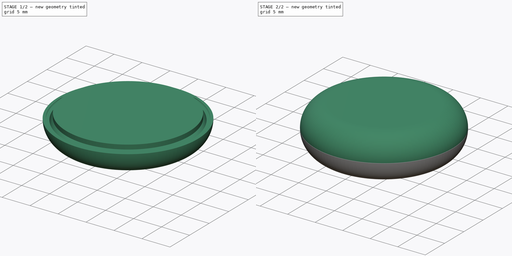
[diagram: build sequence overview — one tinted view per stage of 2, left to right]
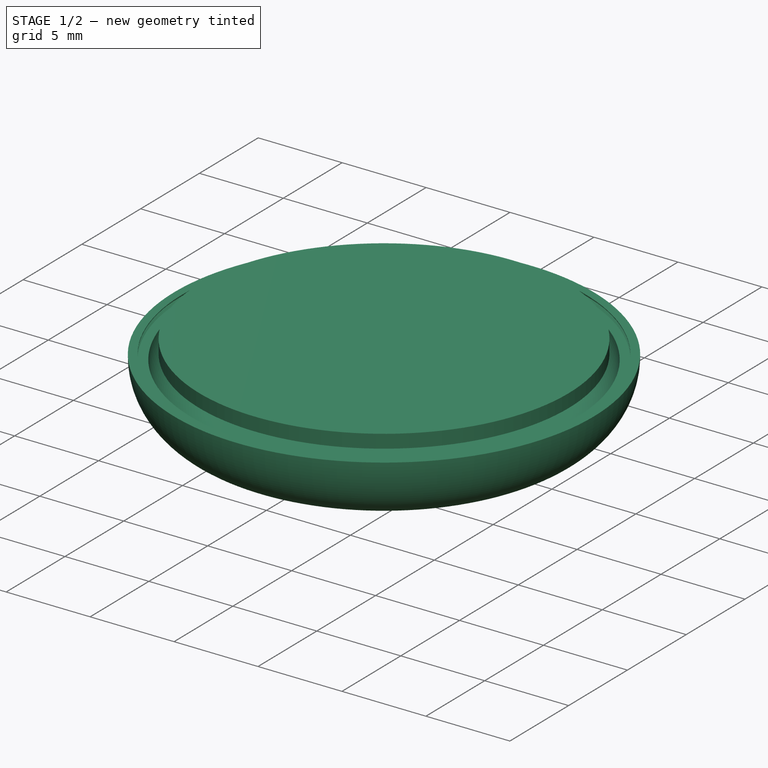
[diagram: stage 1 of 2 — iso view after this stage's code; geometry added in this stage tinted green]
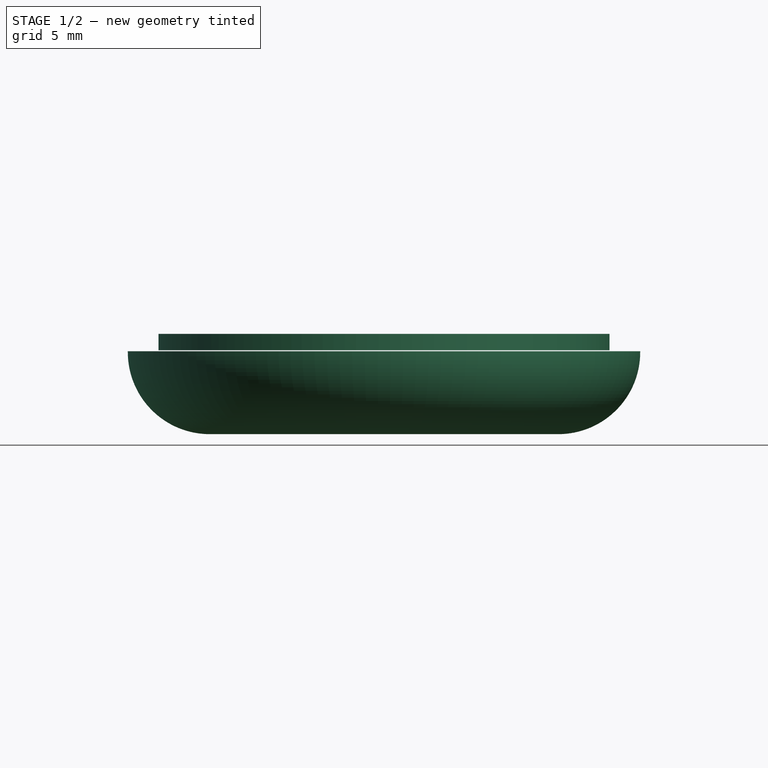
[diagram: stage 1 of 2 — front view after this stage's code; geometry added in this stage tinted green]
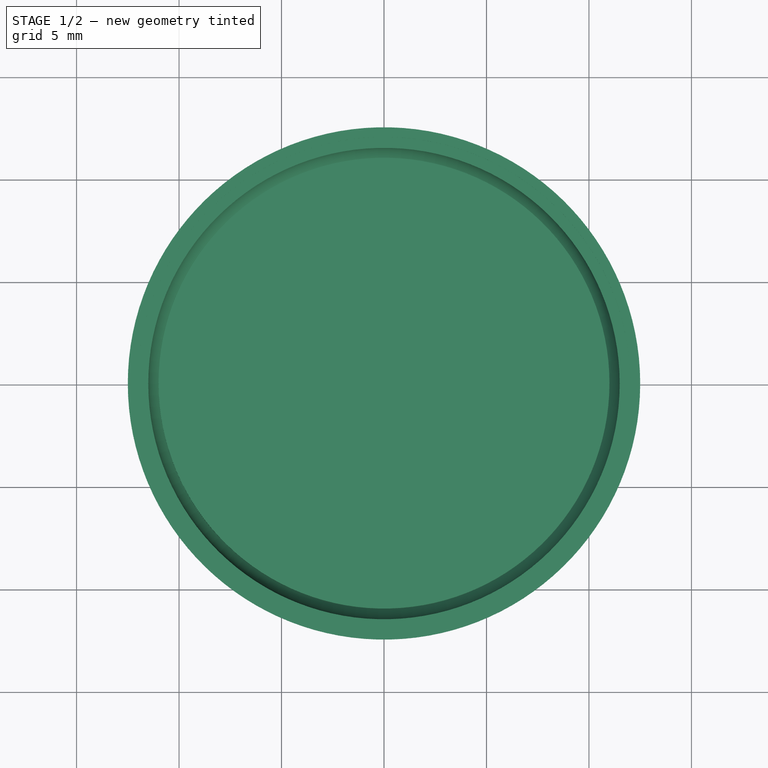
[diagram: stage 1 of 2 — top view after this stage's code; geometry added in this stage tinted green]
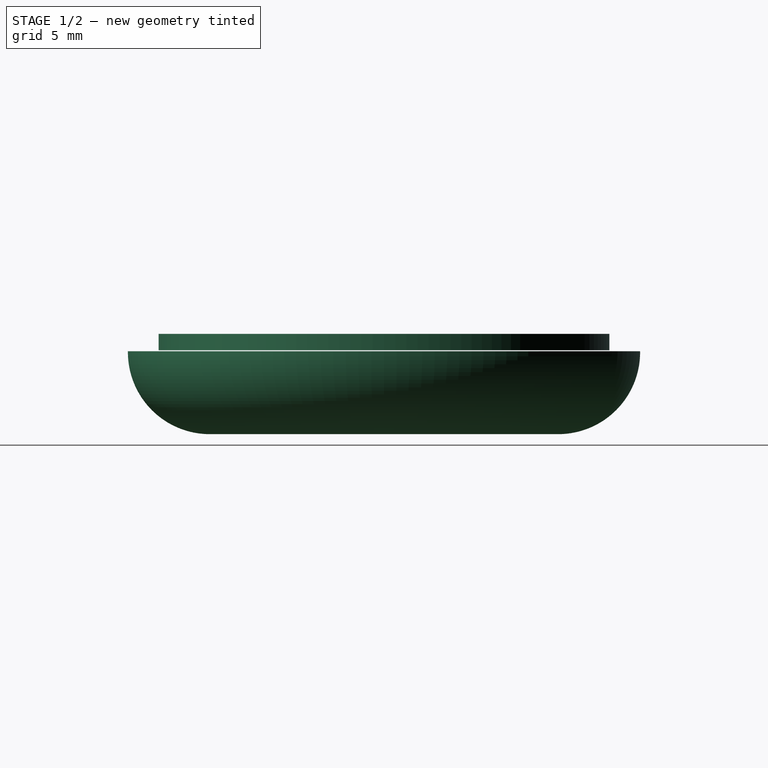
[diagram: stage 1 of 2 — right view after this stage's code; geometry added in this stage tinted green]
FCSTD DOCUMENT  (FreeCAD 0.21R33668 +7 (Git))
Label: Gymtimer2
License: All rights reserved
LicenseURL: http://en.wikipedia.org/wiki/All_rights_reserved
objects: Sketcher::SketchObject×7, PartDesign::Revolution×3, PartDesign::Body×3, Part::Feature×1, PartDesign::Pad×1
note: 19 computed .brp shape members not serialized (recipe doc carries the construction recipe); baked Part::Feature solids carry a one-line shape summary decoded from their .brp

FEATURE [PartDesign::Body] Body  label="Top"
  Group = -> [Sketch,Sketch001,Sketch003,Revolution,Revolution001]
  Origin = -> Origin
  Tip = -> Revolution001
FEATURE [Sketcher::SketchObject] Sketch004
  FullyConstrained = false
  MapMode = 5
  Support = -> [XY_Plane001]
  sketch-geometry (6):
    g0: Circle CenterX=0 CenterY=0 CenterZ=0 NormalX=0 NormalY=0 NormalZ=1 AngleXU=0 Radius=12.5
    g1: Circle CenterX=0 CenterY=0 CenterZ=0 NormalX=0 NormalY=0 NormalZ=1 AngleXU=0 Radius=10
    g2: LineSegment StartX=-7.84018 StartY=6.15 StartZ=0 EndX=-3.24018 EndY=6.15 EndZ=0
    g3: LineSegment StartX=-3.24018 StartY=6.15 StartZ=0 EndX=-3.24018 EndY=-6.15 EndZ=0
    g4: LineSegment StartX=-3.24018 StartY=-6.15 StartZ=0 EndX=-7.84018 EndY=-6.15 EndZ=0
    g5: LineSegment StartX=-7.84018 StartY=-6.15 StartZ=0 EndX=-7.84018 EndY=6.15 EndZ=0
  constraints (14):
    c: Coincident(g0,g-1)
    c: Diameter(g0) = 25
    c: Coincident(g1,g0)
    c: Diameter(g1) = 20
    c: Coincident(g2,g3)
    c: Coincident(g3,g4)
    c: Coincident(g4,g5)
    c: Coincident(g5,g2)
    c: Horizontal(g2)
    c: Horizontal(g4)
    c: Vertical(g5)
    c: DistanceX(g2,g2) = 4.6
    c: DistanceY(g3,g3) = 12.3
    c: Symmetric(g2,g3,g-1)
FEATURE [Sketcher::SketchObject] Sketch005
  FullyConstrained = false
  MapMode = 5
  Placement = pos=(0,0,0) rot=(1,0,0;1.5708rad)
  Support = -> [XZ_Plane001]
  sketch-geometry (35):
    g0: LineSegment StartX=0 StartY=4.01302 StartZ=0 EndX=8.52532 EndY=4.01302 EndZ=0
    g1: ArcOfCircle CenterX=8.51064 CenterY=0.023616 CenterZ=0 NormalX=0 NormalY=0 NormalZ=1 AngleXU=0 Radius=3.98943 StartAngle=6.27727 EndAngle=7.8503
    g2: LineSegment StartX=12.5 StartY=-9e-16 StartZ=0 EndX=11.975 EndY=0 EndZ=0
    g3: LineSegment StartX=11.975 StartY=0 StartZ=0 EndX=11.975 EndY=-0.142154 EndZ=0
    g4: LineSegment StartX=11.975 StartY=-0.142154 StartZ=0 EndX=12.0461 EndY=-0.213231 EndZ=0
    g5: LineSegment StartX=12.0461 StartY=-0.213231 StartZ=0 EndX=11.975 EndY=-0.284308 EndZ=0
    g6: LineSegment StartX=11.975 StartY=-0.284308 StartZ=0 EndX=11.5 EndY=-0.284308 EndZ=0
    g7: LineSegment StartX=11.5 StartY=-0.284308 StartZ=0 EndX=11.5 EndY=0.023616 EndZ=0
    g8: ArcOfCircle CenterX=8.51064 CenterY=0.023616 CenterZ=0 NormalX=0 NormalY=0 NormalZ=1 AngleXU=0 Radius=2.98936 StartAngle=0 EndAngle=1.57757
    g9: LineSegment StartX=8.49039 StartY=3.01291 StartZ=0 EndX=0 EndY=3.01291 EndZ=0
    g10: LineSegment StartX=0 StartY=3.01291 StartZ=0 EndX=0 EndY=4.01302 EndZ=0
    g11: LineSegment StartX=0 StartY=-3.98721 StartZ=0 EndX=8.51064 EndY=-3.98721 EndZ=0
    g12: ArcOfCircle CenterX=8.51064 CenterY=0.023616 CenterZ=0 NormalX=0 NormalY=0 NormalZ=1 AngleXU=0 Radius=4.01082 StartAngle=4.71239 EndAngle=6.17969
    g13: LineSegment StartX=12.5 StartY=-8e-16 StartZ=0 EndX=11.975 EndY=0 EndZ=0
    g14: ArcOfCircle CenterX=8.51064 CenterY=0.023616 CenterZ=0 NormalX=0 NormalY=0 NormalZ=1 AngleXU=0 Radius=3.01071 StartAngle=4.71239 EndAngle=6.16402
    g15: LineSegment StartX=8.51064 StartY=-2.98709 StartZ=0 EndX=0 EndY=-2.98709 EndZ=0
    g16: LineSegment StartX=0 StartY=-2.98709 StartZ=0 EndX=0 EndY=-3.98721 EndZ=0
    g17: LineSegment StartX=12.025 StartY=-0.334308 StartZ=0 EndX=11.5 EndY=-0.334308 EndZ=0
    g18: LineSegment StartX=12.025 StartY=-0.0921542 StartZ=0 EndX=12.1461 EndY=-0.213231 EndZ=0
    g19: LineSegment StartX=12.1461 StartY=-0.213231 StartZ=0 EndX=12.025 EndY=-0.334308 EndZ=0
    g20: LineSegment StartX=12.025 StartY=-0.05 StartZ=0 EndX=12.025 EndY=-0.0921542 EndZ=0
    g21: LineSegment StartX=12.5 StartY=-0.39076 StartZ=0 EndX=12.5 EndY=-0.05 EndZ=0
    g22: LineSegment StartX=0 StartY=4.01302 StartZ=0 EndX=0 EndY=3.01291 EndZ=0
    g23: LineSegment StartX=12.025 StartY=-0.05 StartZ=0 EndX=12.5 EndY=-0.05 EndZ=0
    g24: LineSegment StartX=0 StartY=4.01302 StartZ=0 EndX=8.52532 EndY=4.01302 EndZ=0
    g25: ArcOfCircle CenterX=8.52532 CenterY=0.0381534 CenterZ=0 NormalX=0 NormalY=0 NormalZ=1 AngleXU=0 Radius=3.97486 StartAngle=6.27359 EndAngle=7.85398
    g26: LineSegment StartX=12.5 StartY=-9e-16 StartZ=0 EndX=11.975 EndY=0 EndZ=0
    g27: LineSegment StartX=11.975 StartY=0 StartZ=0 EndX=11.975 EndY=-0.142154 EndZ=0
    g28: LineSegment StartX=11.975 StartY=-0.142154 StartZ=0 EndX=12.0461 EndY=-0.213231 EndZ=0
    g29: LineSegment StartX=12.0461 StartY=-0.213231 StartZ=0 EndX=11.975 EndY=-0.284308 EndZ=0
    g30: LineSegment StartX=11.975 StartY=-0.284308 StartZ=0 EndX=11.5 EndY=-0.284308 EndZ=0
    g31: LineSegment StartX=11.5 StartY=-0.284308 StartZ=0 EndX=11.5 EndY=0.023616 EndZ=0
    g32: ArcOfCircle CenterX=8.51064 CenterY=0.023616 CenterZ=0 NormalX=0 NormalY=0 NormalZ=1 AngleXU=0 Radius=2.98936 StartAngle=0 EndAngle=1.57757
    g33: LineSegment StartX=8.49039 StartY=3.01291 StartZ=0 EndX=0 EndY=3.01291 EndZ=0
    g34: LineSegment StartX=0 StartY=3.01291 StartZ=0 EndX=0 EndY=4.01302 EndZ=0
  constraints (84):
    c: PointOnObject(g0,g-2)
    c: Horizontal(g0)
    c: PointOnObject(g1,g-1)
    c: Coincident(g1,g2)
    c: PointOnObject(g2,g-1)
    c: Coincident(g2,g3)
    c: Vertical(g3)
    c: Coincident(g3,g4)
    c: Coincident(g4,g5)
    c: Coincident(g5,g6)
    c: Horizontal(g6)
    c: Coincident(g6,g7)
    c: Vertical(g7)
    c: Tangent(g7,g8) = -1.5708
    c: Horizontal(g9)
    c: Coincident(g9,g10)
    c: DistanceX(g-1,g1) = 12.5
    c: Coincident(g1,g8)
    c: Perpendicular(g5,g4)
    c: Equal(g5,g4)
    c: Symmetric(g5,g2,g3)
    c: Horizontal(g11)
    c: Horizontal(g15)
    c: Coincident(g15,g16)
    c: Vertical(g12,g1)
    c: Vertical(g14,g6)
    c: Horizontal(g17)
    c: Coincident(g17,g14)
    c: Coincident(g0,g10)
    c: Equal(g10,g16)
    c: Vertical(g16)
    c: Coincident(g16,g11)
    c: PointOnObject(g11,g-2)
    c: DistanceY(g15,g9) = 6
    c: Coincident(g14,g12)
    c: Coincident(g12,g1)
    c: Tangent(g14,g15) = 1.5708
    c: Tangent(g12,g11) = -1.5708
    c: Coincident(g18,g19)
    c: Perpendicular(g19,g18)
    c: Equal(g19,g18)
    c: Coincident(g20,g18)
    c: Vertical(g20)
    c: Coincident(g21,g12)
    c: Vertical(g21)
    c: Horizontal(g4,g18)
    c: Parallel(g4,g18)
    c: DistanceX(g7,g1) = 1
    c: Coincident(g17,g19)
    c: Coincident(g22,g0)
    c: Coincident(g22,g9)
    c: Vertical(g22)
    c: Coincident(g8,g9)
    c: Coincident(g1,g0)
    c: Coincident(g23,g20)
    c: Coincident(g23,g21)
    c: Horizontal(g23)
    c: DistanceY(g21,g1) = 0.05
    c: DistanceX(g2,g20) = 0.05
    c: DistanceY(g14,g6) = 0.05
    c: Equal(g23,g6)
    c: Coincident(g2,g13)
    c: Coincident(g0,g24)
    c: Coincident(g24,g0)
    c: Tangent(g24,g25) = 1.5708
    c: Coincident(g25,g1)
    c: Coincident(g25,g26)
    c: Coincident(g26,g2)
    c: Coincident(g26,g27)
    c: Coincident(g27,g3)
    c: Coincident(g27,g28)
    c: Coincident(g28,g4)
    c: Coincident(g28,g29)
    c: Coincident(g29,g5)
    c: Coincident(g29,g30)
    c: Coincident(g30,g6)
    c: Coincident(g30,g31)
    c: Coincident(g31,g7)
    c: Tangent(g31,g32) = -1.5708
    c: Coincident(g32,g8)
    c: Coincident(g32,g33)
    c: Coincident(g33,g9)
    c: Coincident(g33,g34)
    c: Coincident(g34,g24)
FEATURE [Sketcher::SketchObject] Sketch006
  FullyConstrained = false
  MapMode = 5
  Placement = pos=(0,0,0) rot=(1,0,0;1.5708rad)
  Support = -> [XZ_Plane001]
  sketch-geometry (35):
    g0: LineSegment StartX=0 StartY=3.88974 StartZ=0 EndX=8.79796 EndY=3.88974 EndZ=0
    g1: ArcOfCircle CenterX=8.50481 CenterY=-0.0958356 CenterZ=0 NormalX=0 NormalY=0 NormalZ=1 AngleXU=0 Radius=3.99634 StartAngle=0.0239831 EndAngle=1.49738
    g2: LineSegment StartX=12.5 StartY=0 StartZ=0 EndX=11.975 EndY=0 EndZ=0
    g3: LineSegment StartX=11.975 StartY=0 StartZ=0 EndX=11.975 EndY=-0.143017 EndZ=0
    g4: LineSegment StartX=11.975 StartY=-0.143017 StartZ=0 EndX=12.0465 EndY=-0.214525 EndZ=0
    g5: LineSegment StartX=12.0465 StartY=-0.214525 StartZ=0 EndX=11.975 EndY=-0.286033 EndZ=0
    g6: LineSegment StartX=11.975 StartY=-0.286033 StartZ=0 EndX=11.5 EndY=-0.286033 EndZ=0
    g7: LineSegment StartX=11.5 StartY=-0.286033 StartZ=0 EndX=11.5 EndY=-0.0958356 EndZ=0
    g8: ArcOfCircle CenterX=8.50481 CenterY=-0.0958356 CenterZ=0 NormalX=0 NormalY=0 NormalZ=1 AngleXU=0 Radius=2.99519 StartAngle=0 EndAngle=1.57173
    g9: LineSegment StartX=8.50201 StartY=2.89936 StartZ=0 EndX=0 EndY=2.89936 EndZ=0
    g10: LineSegment StartX=0 StartY=2.89936 StartZ=0 EndX=0 EndY=3.88974 EndZ=0
    g11: LineSegment StartX=0 StartY=-4.09103 StartZ=0 EndX=8.50481 EndY=-4.09103 EndZ=0
    g12: ArcOfCircle CenterX=8.50481 CenterY=-0.0958356 CenterZ=0 NormalX=0 NormalY=0 NormalZ=1 AngleXU=0 Radius=3.99519 StartAngle=4.71239 EndAngle=6.28319
    g13: LineSegment StartX=12.5 StartY=-8e-16 StartZ=0 EndX=11.975 EndY=0 EndZ=0
    g14: ArcOfCircle CenterX=8.50481 CenterY=-0.0958356 CenterZ=0 NormalX=0 NormalY=0 NormalZ=1 AngleXU=0 Radius=3.00481 StartAngle=4.71239 EndAngle=6.20316
    g15: LineSegment StartX=8.50481 StartY=-3.10064 StartZ=0 EndX=0 EndY=-3.10064 EndZ=0
    g16: LineSegment StartX=0 StartY=-3.10064 StartZ=0 EndX=0 EndY=-4.09103 EndZ=0
    g17: LineSegment StartX=12.025 StartY=-0.336033 StartZ=0 EndX=11.5 EndY=-0.336033 EndZ=0
    g18: LineSegment StartX=12.025 StartY=-0.0930166 StartZ=0 EndX=12.1465 EndY=-0.214525 EndZ=0
    g19: LineSegment StartX=12.1465 StartY=-0.214525 StartZ=0 EndX=12.025 EndY=-0.336033 EndZ=0
    g20: LineSegment StartX=12.025 StartY=-0.05 StartZ=0 EndX=12.025 EndY=-0.0930166 EndZ=0
    g21: LineSegment StartX=12.5 StartY=-0.095836 StartZ=0 EndX=12.5 EndY=-0.05 EndZ=0
    g22: LineSegment StartX=0 StartY=3.88974 StartZ=0 EndX=0 EndY=2.89936 EndZ=0
    g23: LineSegment StartX=12.025 StartY=-0.05 StartZ=0 EndX=12.5 EndY=-0.05 EndZ=0
    g24: LineSegment StartX=0 StartY=-4.09103 StartZ=0 EndX=0 EndY=-3.10064 EndZ=0
    g25: LineSegment StartX=0 StartY=-3.10064 StartZ=0 EndX=8.50481 EndY=-3.10064 EndZ=0
    g26: ArcOfCircle CenterX=8.50481 CenterY=-0.0958356 CenterZ=0 NormalX=0 NormalY=0 NormalZ=1 AngleXU=0 Radius=3.00481 StartAngle=4.71239 EndAngle=6.20316
    g27: LineSegment StartX=11.5 StartY=-0.336033 StartZ=0 EndX=12.025 EndY=-0.336033 EndZ=0
    g28: LineSegment StartX=12.025 StartY=-0.336033 StartZ=0 EndX=12.1465 EndY=-0.214525 EndZ=0
    g29: LineSegment StartX=12.1465 StartY=-0.214525 StartZ=0 EndX=12.025 EndY=-0.0930166 EndZ=0
    g30: LineSegment StartX=12.025 StartY=-0.0930166 StartZ=0 EndX=12.025 EndY=-0.05 EndZ=0
    g31: LineSegment StartX=12.025 StartY=-0.05 StartZ=0 EndX=12.5 EndY=-0.05 EndZ=0
    g32: LineSegment StartX=8.50782 StartY=-4.0941 StartZ=0 EndX=0 EndY=-4.09103 EndZ=0
    g33: LineSegment StartX=12.5 StartY=-0.05 StartZ=0 EndX=12.5 EndY=-0.095836 EndZ=0
    g34: ArcOfCircle CenterX=8.50173 CenterY=-0.095836 CenterZ=0 NormalX=0 NormalY=0 NormalZ=1 AngleXU=0 Radius=3.99827 StartAngle=4.71391 EndAngle=6.28319
  constraints (83):
    c: PointOnObject(g0,g-2)
    c: Horizontal(g0)
    c: PointOnObject(g1,g-1)
    c: Coincident(g1,g2)
    c: PointOnObject(g2,g-1)
    c: Coincident(g2,g3)
    c: Vertical(g3)
    c: Coincident(g3,g4)
    c: Coincident(g4,g5)
    c: Coincident(g5,g6)
    c: Horizontal(g6)
    c: Coincident(g6,g7)
    c: Vertical(g7)
    c: Tangent(g7,g8) = -1.5708
    c: Horizontal(g9)
    c: Coincident(g9,g10)
    c: DistanceX(g-1,g1) = 12.5
    c: Coincident(g1,g8)
    c: Perpendicular(g5,g4)
    c: Equal(g5,g4)
    c: Symmetric(g5,g2,g3)
    c: Horizontal(g11)
    c: Horizontal(g15)
    c: Coincident(g15,g16)
    c: Vertical(g12,g1)
    c: Vertical(g14,g6)
    c: Horizontal(g17)
    c: Coincident(g17,g14)
    c: Coincident(g0,g10)
    c: Equal(g10,g16)
    c: Vertical(g16)
    c: Coincident(g16,g11)
    c: PointOnObject(g11,g-2)
    c: DistanceY(g15,g9) = 6
    c: Coincident(g14,g12)
    c: Coincident(g12,g1)
    c: Tangent(g14,g15) = 1.5708
    c: Tangent(g12,g11) = -1.5708
    c: Coincident(g18,g19)
    c: Perpendicular(g19,g18)
    c: Equal(g19,g18)
    c: Coincident(g20,g18)
    c: Vertical(g20)
    c: Coincident(g21,g12)
    c: Vertical(g21)
    c: Horizontal(g4,g18)
    c: Parallel(g4,g18)
    c: DistanceX(g7,g1) = 1
    c: Coincident(g17,g19)
    c: Coincident(g22,g0)
    c: Coincident(g22,g9)
    c: Vertical(g22)
    c: Coincident(g8,g9)
    c: Coincident(g1,g0)
    c: Coincident(g23,g20)
    c: Coincident(g23,g21)
    c: Horizontal(g23)
    c: DistanceY(g21,g1) = 0.05
    c: DistanceX(g2,g20) = 0.05
    c: DistanceY(g14,g6) = 0.05
    c: Equal(g23,g6)
    c: Coincident(g2,g13)
    c: Coincident(g11,g24)
    c: Coincident(g24,g15)
    c: Coincident(g24,g25)
    c: Coincident(g25,g14)
    c: Tangent(g25,g26) = -1.5708
    c: Coincident(g26,g14)
    c: Coincident(g26,g27)
    c: Coincident(g27,g17)
    c: Coincident(g27,g28)
    c: Coincident(g28,g18)
    c: Coincident(g28,g29)
    c: Coincident(g29,g18)
    c: Coincident(g29,g30)
    c: Coincident(g30,g20)
    c: Coincident(g30,g31)
    c: Coincident(g31,g21)
    c: Coincident(g32,g24)
    c: Coincident(g31,g33)
    c: Coincident(g33,g12)
    c: Tangent(g33,g34) = 1.5708
    c: Coincident(g34,g32)
FEATURE [PartDesign::Revolution] Revolution003
  Angle = 360
  Axis = (-3e-16,3e-16,1)
  Base = (0,0,0)
  Placement = pos=(0,0,0) rot=(1,0,0;1.5708rad)
  Profile = -> Sketch006
  ReferenceAxis = -> Z_Axis001
  Reversed = true
FEATURE [PartDesign::Body] Body001  label="Bottom"
  Group = -> [Sketch004,Sketch005,Sketch006,Revolution003]
  Origin = -> Origin001
  Tip = -> Revolution003
FEATURE [Part::Feature] Part__Feature  label="battery"
  Placement = pos=(-3e-16,0,2.47) rot=(0,1,0;3.14159rad)
  shape: bbox 21.65 x 21.65 x 3.2 mm, 157 faces (baked)
FEATURE [Sketcher::SketchObject] Sketch007
  FullyConstrained = true
  MapMode = 5
  Support = -> [XY_Plane002]
  sketch-geometry (1):
    g0: Circle CenterX=0 CenterY=0 CenterZ=0 NormalX=0 NormalY=0 NormalZ=1 AngleXU=0 Radius=11
  constraints (2):
    c: Coincident(g0,g-1)
    c: Diameter(g0) = 22
FEATURE [PartDesign::Pad] Pad
  Direction = (0,0,1)
  Length = 0.8
  Length2 = 10
  Profile = -> Sketch007
  ReferenceAxis = -> Sketch007 [N_Axis]
  Type = 0
FEATURE [PartDesign::Body] Body002  label="PCB"
  Group = -> [Sketch007,Pad]
  Origin = -> Origin002
  Placement = pos=(0,0,-1.56) rot=(0,0,1;0rad)
  Tip = -> Pad
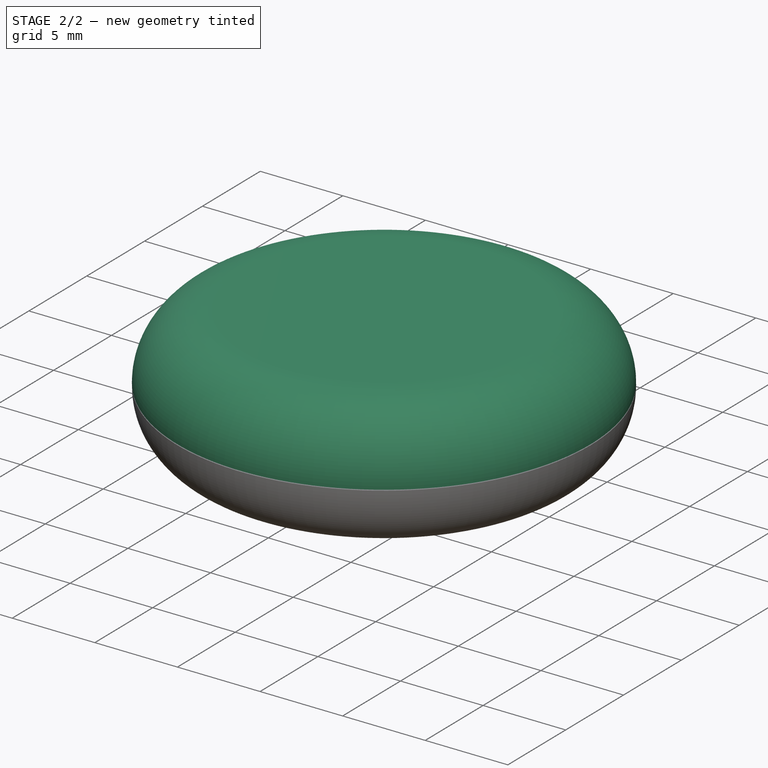
[diagram: stage 2 of 2 — iso view after this stage's code; geometry added in this stage tinted green]
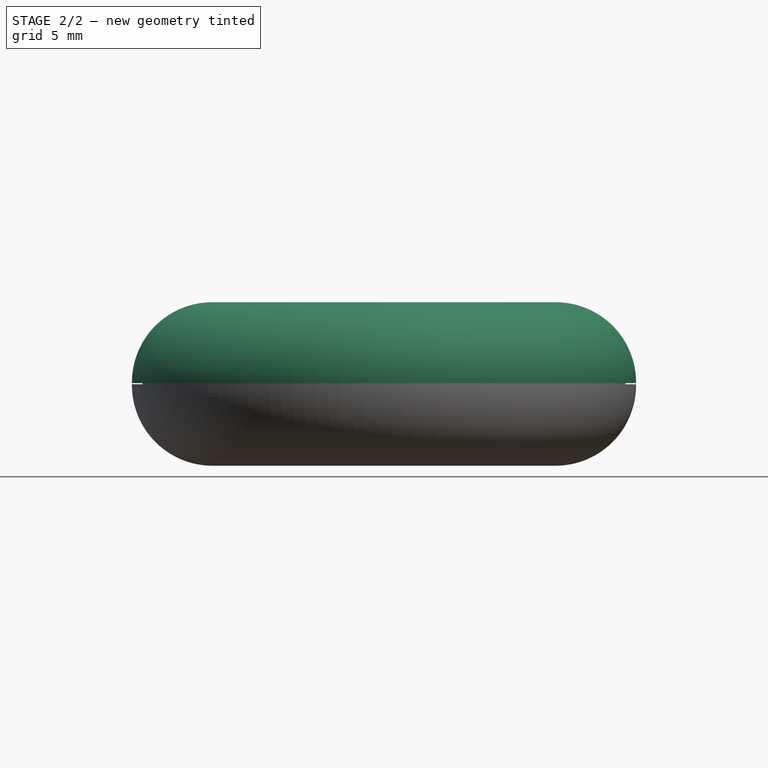
[diagram: stage 2 of 2 — front view after this stage's code; geometry added in this stage tinted green]
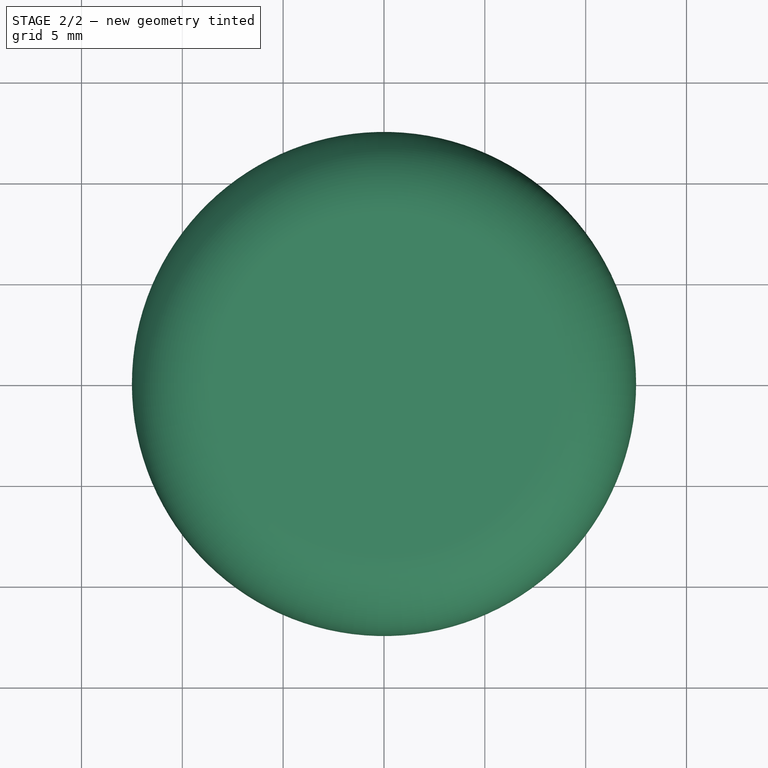
[diagram: stage 2 of 2 — top view after this stage's code; geometry added in this stage tinted green]
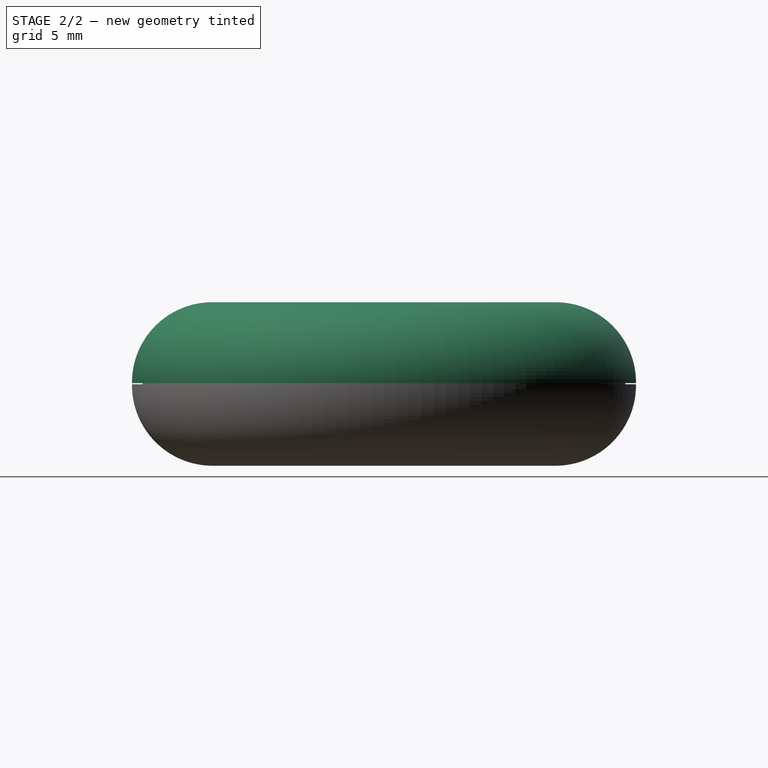
[diagram: stage 2 of 2 — right view after this stage's code; geometry added in this stage tinted green]
FEATURE [Sketcher::SketchObject] Sketch
  FullyConstrained = false
  MapMode = 5
  Support = -> [XY_Plane]
  sketch-geometry (6):
    g0: Circle CenterX=0 CenterY=0 CenterZ=0 NormalX=0 NormalY=0 NormalZ=1 AngleXU=0 Radius=12.5
    g1: Circle CenterX=0 CenterY=0 CenterZ=0 NormalX=0 NormalY=0 NormalZ=1 AngleXU=0 Radius=10
    g2: LineSegment StartX=-7.84018 StartY=6.15 StartZ=0 EndX=-3.24018 EndY=6.15 EndZ=0
    g3: LineSegment StartX=-3.24018 StartY=6.15 StartZ=0 EndX=-3.24018 EndY=-6.15 EndZ=0
    g4: LineSegment StartX=-3.24018 StartY=-6.15 StartZ=0 EndX=-7.84018 EndY=-6.15 EndZ=0
    g5: LineSegment StartX=-7.84018 StartY=-6.15 StartZ=0 EndX=-7.84018 EndY=6.15 EndZ=0
  constraints (14):
    c: Coincident(g0,g-1)
    c: Diameter(g0) = 25
    c: Coincident(g1,g0)
    c: Diameter(g1) = 20
    c: Coincident(g2,g3)
    c: Coincident(g3,g4)
    c: Coincident(g4,g5)
    c: Coincident(g5,g2)
    c: Horizontal(g2)
    c: Horizontal(g4)
    c: Vertical(g5)
    c: DistanceX(g2,g2) = 4.6
    c: DistanceY(g3,g3) = 12.3
    c: Symmetric(g2,g3,g-1)
FEATURE [Sketcher::SketchObject] Sketch001
  FullyConstrained = false
  MapMode = 5
  Placement = pos=(0,0,0) rot=(1,0,0;1.5708rad)
  Support = -> [XZ_Plane]
  sketch-geometry (35):
    g0: LineSegment StartX=0 StartY=4.01302 StartZ=0 EndX=8.52532 EndY=4.01302 EndZ=0
    g1: ArcOfCircle CenterX=8.51064 CenterY=0.023616 CenterZ=0 NormalX=0 NormalY=0 NormalZ=1 AngleXU=0 Radius=3.98943 StartAngle=6.27727 EndAngle=7.8503
    g2: LineSegment StartX=12.5 StartY=-9e-16 StartZ=0 EndX=11.975 EndY=0 EndZ=0
    g3: LineSegment StartX=11.975 StartY=0 StartZ=0 EndX=11.975 EndY=-0.142154 EndZ=0
    g4: LineSegment StartX=11.975 StartY=-0.142154 StartZ=0 EndX=12.0461 EndY=-0.213231 EndZ=0
    g5: LineSegment StartX=12.0461 StartY=-0.213231 StartZ=0 EndX=11.975 EndY=-0.284308 EndZ=0
    g6: LineSegment StartX=11.975 StartY=-0.284308 StartZ=0 EndX=11.5 EndY=-0.284308 EndZ=0
    g7: LineSegment StartX=11.5 StartY=-0.284308 StartZ=0 EndX=11.5 EndY=0.023616 EndZ=0
    g8: ArcOfCircle CenterX=8.51064 CenterY=0.023616 CenterZ=0 NormalX=0 NormalY=0 NormalZ=1 AngleXU=0 Radius=2.98936 StartAngle=0 EndAngle=1.57757
    g9: LineSegment StartX=8.49039 StartY=3.01291 StartZ=0 EndX=0 EndY=3.01291 EndZ=0
    g10: LineSegment StartX=0 StartY=3.01291 StartZ=0 EndX=0 EndY=4.01302 EndZ=0
    g11: LineSegment StartX=0 StartY=-3.98721 StartZ=0 EndX=8.51064 EndY=-3.98721 EndZ=0
    g12: ArcOfCircle CenterX=8.51064 CenterY=0.023616 CenterZ=0 NormalX=0 NormalY=0 NormalZ=1 AngleXU=0 Radius=4.01082 StartAngle=4.71239 EndAngle=6.17969
    g13: LineSegment StartX=12.5 StartY=-8e-16 StartZ=0 EndX=11.975 EndY=0 EndZ=0
    g14: ArcOfCircle CenterX=8.51064 CenterY=0.023616 CenterZ=0 NormalX=0 NormalY=0 NormalZ=1 AngleXU=0 Radius=3.01071 StartAngle=4.71239 EndAngle=6.16402
    g15: LineSegment StartX=8.51064 StartY=-2.98709 StartZ=0 EndX=0 EndY=-2.98709 EndZ=0
    g16: LineSegment StartX=0 StartY=-2.98709 StartZ=0 EndX=0 EndY=-3.98721 EndZ=0
    g17: LineSegment StartX=12.025 StartY=-0.334308 StartZ=0 EndX=11.5 EndY=-0.334308 EndZ=0
    g18: LineSegment StartX=12.025 StartY=-0.0921542 StartZ=0 EndX=12.1461 EndY=-0.213231 EndZ=0
    g19: LineSegment StartX=12.1461 StartY=-0.213231 StartZ=0 EndX=12.025 EndY=-0.334308 EndZ=0
    g20: LineSegment StartX=12.025 StartY=-0.05 StartZ=0 EndX=12.025 EndY=-0.0921542 EndZ=0
    g21: LineSegment StartX=12.5 StartY=-0.39076 StartZ=0 EndX=12.5 EndY=-0.05 EndZ=0
    g22: LineSegment StartX=0 StartY=4.01302 StartZ=0 EndX=0 EndY=3.01291 EndZ=0
    g23: LineSegment StartX=12.025 StartY=-0.05 StartZ=0 EndX=12.5 EndY=-0.05 EndZ=0
    g24: LineSegment StartX=0 StartY=4.01302 StartZ=0 EndX=8.52532 EndY=4.01302 EndZ=0
    g25: ArcOfCircle CenterX=8.52532 CenterY=0.0381534 CenterZ=0 NormalX=0 NormalY=0 NormalZ=1 AngleXU=0 Radius=3.97486 StartAngle=6.27359 EndAngle=7.85398
    g26: LineSegment StartX=12.5 StartY=-9e-16 StartZ=0 EndX=11.975 EndY=0 EndZ=0
    g27: LineSegment StartX=11.975 StartY=0 StartZ=0 EndX=11.975 EndY=-0.142154 EndZ=0
    g28: LineSegment StartX=11.975 StartY=-0.142154 StartZ=0 EndX=12.0461 EndY=-0.213231 EndZ=0
    g29: LineSegment StartX=12.0461 StartY=-0.213231 StartZ=0 EndX=11.975 EndY=-0.284308 EndZ=0
    g30: LineSegment StartX=11.975 StartY=-0.284308 StartZ=0 EndX=11.5 EndY=-0.284308 EndZ=0
    g31: LineSegment StartX=11.5 StartY=-0.284308 StartZ=0 EndX=11.5 EndY=0.023616 EndZ=0
    g32: ArcOfCircle CenterX=8.51064 CenterY=0.023616 CenterZ=0 NormalX=0 NormalY=0 NormalZ=1 AngleXU=0 Radius=2.98936 StartAngle=0 EndAngle=1.57757
    g33: LineSegment StartX=8.49039 StartY=3.01291 StartZ=0 EndX=0 EndY=3.01291 EndZ=0
    g34: LineSegment StartX=0 StartY=3.01291 StartZ=0 EndX=0 EndY=4.01302 EndZ=0
  constraints (84):
    c: PointOnObject(g0,g-2)
    c: Horizontal(g0)
    c: PointOnObject(g1,g-1)
    c: Coincident(g1,g2)
    c: PointOnObject(g2,g-1)
    c: Coincident(g2,g3)
    c: Vertical(g3)
    c: Coincident(g3,g4)
    c: Coincident(g4,g5)
    c: Coincident(g5,g6)
    c: Horizontal(g6)
    c: Coincident(g6,g7)
    c: Vertical(g7)
    c: Tangent(g7,g8) = -1.5708
    c: Horizontal(g9)
    c: Coincident(g9,g10)
    c: DistanceX(g-1,g1) = 12.5
    c: Coincident(g1,g8)
    c: Perpendicular(g5,g4)
    c: Equal(g5,g4)
    c: Symmetric(g5,g2,g3)
    c: Horizontal(g11)
    c: Horizontal(g15)
    c: Coincident(g15,g16)
    c: Vertical(g12,g1)
    c: Vertical(g14,g6)
    c: Horizontal(g17)
    c: Coincident(g17,g14)
    c: Coincident(g0,g10)
    c: Equal(g10,g16)
    c: Vertical(g16)
    c: Coincident(g16,g11)
    c: PointOnObject(g11,g-2)
    c: DistanceY(g15,g9) = 6
    c: Coincident(g14,g12)
    c: Coincident(g12,g1)
    c: Tangent(g14,g15) = 1.5708
    c: Tangent(g12,g11) = -1.5708
    c: Coincident(g18,g19)
    c: Perpendicular(g19,g18)
    c: Equal(g19,g18)
    c: Coincident(g20,g18)
    c: Vertical(g20)
    c: Coincident(g21,g12)
    c: Vertical(g21)
    c: Horizontal(g4,g18)
    c: Parallel(g4,g18)
    c: DistanceX(g7,g1) = 1
    c: Coincident(g17,g19)
    c: Coincident(g22,g0)
    c: Coincident(g22,g9)
    c: Vertical(g22)
    c: Coincident(g8,g9)
    c: Coincident(g1,g0)
    c: Coincident(g23,g20)
    c: Coincident(g23,g21)
    c: Horizontal(g23)
    c: DistanceY(g21,g1) = 0.05
    c: DistanceX(g2,g20) = 0.05
    c: DistanceY(g14,g6) = 0.05
    c: Equal(g23,g6)
    c: Coincident(g2,g13)
    c: Coincident(g0,g24)
    c: Coincident(g24,g0)
    c: Tangent(g24,g25) = 1.5708
    c: Coincident(g25,g1)
    c: Coincident(g25,g26)
    c: Coincident(g26,g2)
    c: Coincident(g26,g27)
    c: Coincident(g27,g3)
    c: Coincident(g27,g28)
    c: Coincident(g28,g4)
    c: Coincident(g28,g29)
    c: Coincident(g29,g5)
    c: Coincident(g29,g30)
    c: Coincident(g30,g6)
    c: Coincident(g30,g31)
    c: Coincident(g31,g7)
    c: Tangent(g31,g32) = -1.5708
    c: Coincident(g32,g8)
    c: Coincident(g32,g33)
    c: Coincident(g33,g9)
    c: Coincident(g33,g34)
    c: Coincident(g34,g24)
FEATURE [Sketcher::SketchObject] Sketch003
  FullyConstrained = false
  MapMode = 5
  Placement = pos=(0,0,0) rot=(1,0,0;1.5708rad)
  Support = -> [XZ_Plane]
  sketch-geometry (35):
    g0: LineSegment StartX=0 StartY=3.88974 StartZ=0 EndX=8.79796 EndY=3.88974 EndZ=0
    g1: ArcOfCircle CenterX=8.50481 CenterY=-0.0958356 CenterZ=0 NormalX=0 NormalY=0 NormalZ=1 AngleXU=0 Radius=3.99634 StartAngle=0.0239831 EndAngle=1.49738
    g2: LineSegment StartX=12.5 StartY=0 StartZ=0 EndX=11.975 EndY=0 EndZ=0
    g3: LineSegment StartX=11.975 StartY=0 StartZ=0 EndX=11.975 EndY=-0.143017 EndZ=0
    g4: LineSegment StartX=11.975 StartY=-0.143017 StartZ=0 EndX=12.0465 EndY=-0.214525 EndZ=0
    g5: LineSegment StartX=12.0465 StartY=-0.214525 StartZ=0 EndX=11.975 EndY=-0.286033 EndZ=0
    g6: LineSegment StartX=11.975 StartY=-0.286033 StartZ=0 EndX=11.5 EndY=-0.286033 EndZ=0
    g7: LineSegment StartX=11.5 StartY=-0.286033 StartZ=0 EndX=11.5 EndY=-0.0958356 EndZ=0
    g8: ArcOfCircle CenterX=8.50481 CenterY=-0.0958356 CenterZ=0 NormalX=0 NormalY=0 NormalZ=1 AngleXU=0 Radius=2.99519 StartAngle=0 EndAngle=1.57173
    g9: LineSegment StartX=8.50201 StartY=2.89936 StartZ=0 EndX=0 EndY=2.89936 EndZ=0
    g10: LineSegment StartX=0 StartY=2.89936 StartZ=0 EndX=0 EndY=3.88974 EndZ=0
    g11: LineSegment StartX=0 StartY=-4.09103 StartZ=0 EndX=8.50481 EndY=-4.09103 EndZ=0
    g12: ArcOfCircle CenterX=8.50481 CenterY=-0.0958356 CenterZ=0 NormalX=0 NormalY=0 NormalZ=1 AngleXU=0 Radius=3.99519 StartAngle=4.71239 EndAngle=6.28319
    g13: LineSegment StartX=12.5 StartY=-8e-16 StartZ=0 EndX=11.975 EndY=0 EndZ=0
    g14: ArcOfCircle CenterX=8.50481 CenterY=-0.0958356 CenterZ=0 NormalX=0 NormalY=0 NormalZ=1 AngleXU=0 Radius=3.00481 StartAngle=4.71239 EndAngle=6.20316
    g15: LineSegment StartX=8.50481 StartY=-3.10064 StartZ=0 EndX=0 EndY=-3.10064 EndZ=0
    g16: LineSegment StartX=0 StartY=-3.10064 StartZ=0 EndX=0 EndY=-4.09103 EndZ=0
    g17: LineSegment StartX=12.025 StartY=-0.336033 StartZ=0 EndX=11.5 EndY=-0.336033 EndZ=0
    g18: LineSegment StartX=12.025 StartY=-0.0930166 StartZ=0 EndX=12.1465 EndY=-0.214525 EndZ=0
    g19: LineSegment StartX=12.1465 StartY=-0.214525 StartZ=0 EndX=12.025 EndY=-0.336033 EndZ=0
    g20: LineSegment StartX=12.025 StartY=-0.05 StartZ=0 EndX=12.025 EndY=-0.0930166 EndZ=0
    g21: LineSegment StartX=12.5 StartY=-0.095836 StartZ=0 EndX=12.5 EndY=-0.05 EndZ=0
    g22: LineSegment StartX=0 StartY=3.88974 StartZ=0 EndX=0 EndY=2.89936 EndZ=0
    g23: LineSegment StartX=12.025 StartY=-0.05 StartZ=0 EndX=12.5 EndY=-0.05 EndZ=0
    g24: LineSegment StartX=0 StartY=-4.09103 StartZ=0 EndX=0 EndY=-3.10064 EndZ=0
    g25: LineSegment StartX=0 StartY=-3.10064 StartZ=0 EndX=8.50481 EndY=-3.10064 EndZ=0
    g26: ArcOfCircle CenterX=8.50481 CenterY=-0.0958356 CenterZ=0 NormalX=0 NormalY=0 NormalZ=1 AngleXU=0 Radius=3.00481 StartAngle=4.71239 EndAngle=6.20316
    g27: LineSegment StartX=11.5 StartY=-0.336033 StartZ=0 EndX=12.025 EndY=-0.336033 EndZ=0
    g28: LineSegment StartX=12.025 StartY=-0.336033 StartZ=0 EndX=12.1465 EndY=-0.214525 EndZ=0
    g29: LineSegment StartX=12.1465 StartY=-0.214525 StartZ=0 EndX=12.025 EndY=-0.0930166 EndZ=0
    g30: LineSegment StartX=12.025 StartY=-0.0930166 StartZ=0 EndX=12.025 EndY=-0.05 EndZ=0
    g31: LineSegment StartX=12.025 StartY=-0.05 StartZ=0 EndX=12.5 EndY=-0.05 EndZ=0
    g32: LineSegment StartX=8.50782 StartY=-4.0941 StartZ=0 EndX=0 EndY=-4.09103 EndZ=0
    g33: LineSegment StartX=12.5 StartY=-0.05 StartZ=0 EndX=12.5 EndY=-0.095836 EndZ=0
    g34: ArcOfCircle CenterX=8.50173 CenterY=-0.095836 CenterZ=0 NormalX=0 NormalY=0 NormalZ=1 AngleXU=0 Radius=3.99827 StartAngle=4.71391 EndAngle=6.28319
  constraints (83):
    c: PointOnObject(g0,g-2)
    c: Horizontal(g0)
    c: PointOnObject(g1,g-1)
    c: Coincident(g1,g2)
    c: PointOnObject(g2,g-1)
    c: Coincident(g2,g3)
    c: Vertical(g3)
    c: Coincident(g3,g4)
    c: Coincident(g4,g5)
    c: Coincident(g5,g6)
    c: Horizontal(g6)
    c: Coincident(g6,g7)
    c: Vertical(g7)
    c: Tangent(g7,g8) = -1.5708
    c: Horizontal(g9)
    c: Coincident(g9,g10)
    c: DistanceX(g-1,g1) = 12.5
    c: Coincident(g1,g8)
    c: Perpendicular(g5,g4)
    c: Equal(g5,g4)
    c: Symmetric(g5,g2,g3)
    c: Horizontal(g11)
    c: Horizontal(g15)
    c: Coincident(g15,g16)
    c: Vertical(g12,g1)
    c: Vertical(g14,g6)
    c: Horizontal(g17)
    c: Coincident(g17,g14)
    c: Coincident(g0,g10)
    c: Equal(g10,g16)
    c: Vertical(g16)
    c: Coincident(g16,g11)
    c: PointOnObject(g11,g-2)
    c: DistanceY(g15,g9) = 6
    c: Coincident(g14,g12)
    c: Coincident(g12,g1)
    c: Tangent(g14,g15) = 1.5708
    c: Tangent(g12,g11) = -1.5708
    c: Coincident(g18,g19)
    c: Perpendicular(g19,g18)
    c: Equal(g19,g18)
    c: Coincident(g20,g18)
    c: Vertical(g20)
    c: Coincident(g21,g12)
    c: Vertical(g21)
    c: Horizontal(g4,g18)
    c: Parallel(g4,g18)
    c: DistanceX(g7,g1) = 1
    c: Coincident(g17,g19)
    c: Coincident(g22,g0)
    c: Coincident(g22,g9)
    c: Vertical(g22)
    c: Coincident(g8,g9)
    c: Coincident(g1,g0)
    c: Coincident(g23,g20)
    c: Coincident(g23,g21)
    c: Horizontal(g23)
    c: DistanceY(g21,g1) = 0.05
    c: DistanceX(g2,g20) = 0.05
    c: DistanceY(g14,g6) = 0.05
    c: Equal(g23,g6)
    c: Coincident(g2,g13)
    c: Coincident(g11,g24)
    c: Coincident(g24,g15)
    c: Coincident(g24,g25)
    c: Coincident(g25,g14)
    c: Tangent(g25,g26) = -1.5708
    c: Coincident(g26,g14)
    c: Coincident(g26,g27)
    c: Coincident(g27,g17)
    c: Coincident(g27,g28)
    c: Coincident(g28,g18)
    c: Coincident(g28,g29)
    c: Coincident(g29,g18)
    c: Coincident(g29,g30)
    c: Coincident(g30,g20)
    c: Coincident(g30,g31)
    c: Coincident(g31,g21)
    c: Coincident(g32,g24)
    c: Coincident(g31,g33)
    c: Coincident(g33,g12)
    c: Tangent(g33,g34) = 1.5708
    c: Coincident(g34,g32)
FEATURE [PartDesign::Revolution] Revolution
  Angle = 360
  Axis = (0,-2e-16,1)
  Base = (0,0,0)
  Placement = pos=(0,0,0) rot=(1,0,0;1.5708rad)
  Profile = -> Sketch001
  ReferenceAxis = -> Sketch001 [V_Axis]
  Reversed = true
FEATURE [PartDesign::Revolution] Revolution001
  Angle = 360
  Axis = (-3e-16,3e-16,1)
  Base = (0,0,0)
  BaseFeature = -> Revolution
  Placement = pos=(0,0,0) rot=(1,0,0;1.5708rad)
  Profile = -> Sketch003
  ReferenceAxis = -> Z_Axis
  Reversed = true
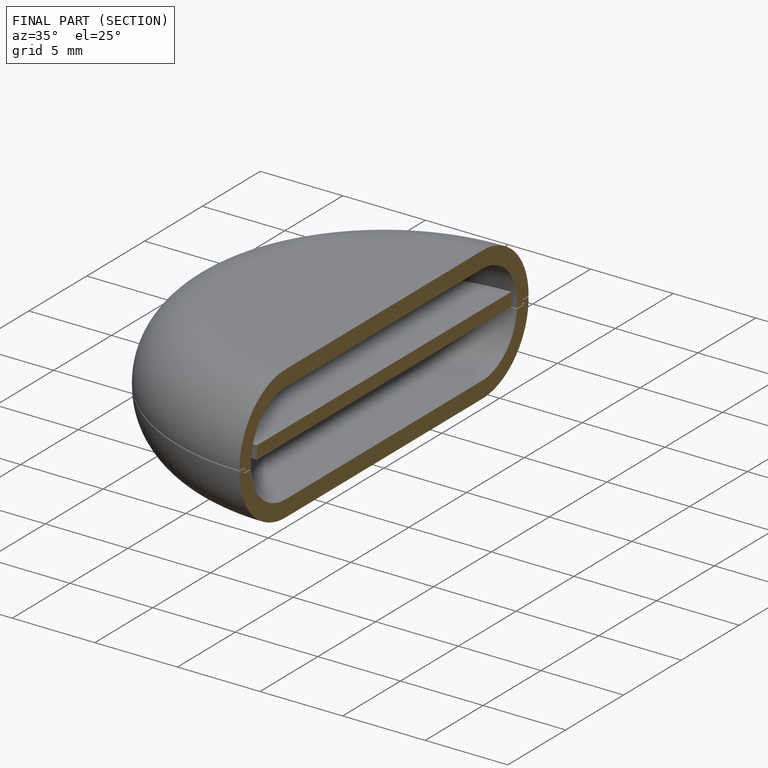
[diagram: finished part — half-section view (interior)]
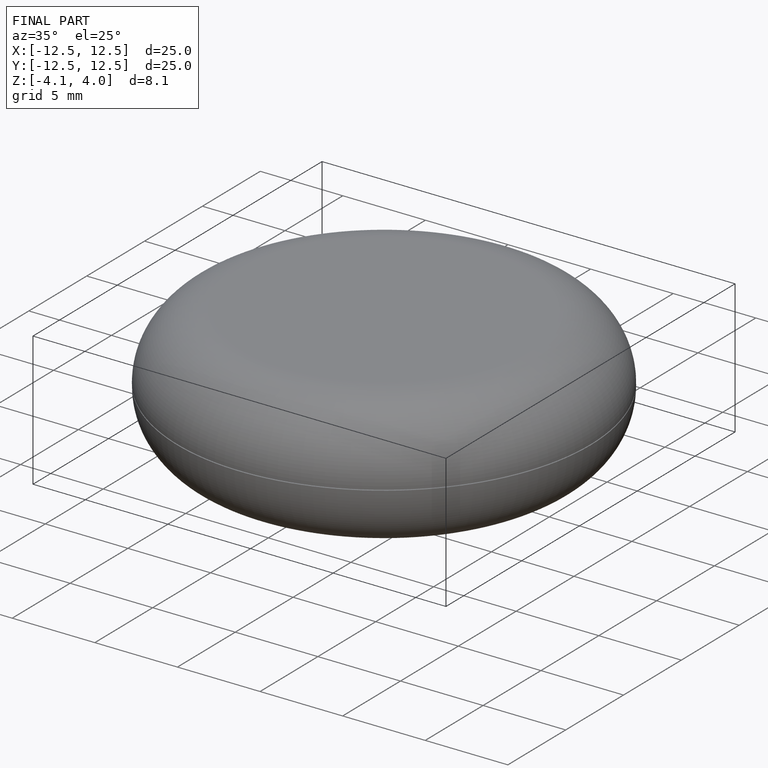
[diagram: finished part — iso view with bounding-box wireframe]
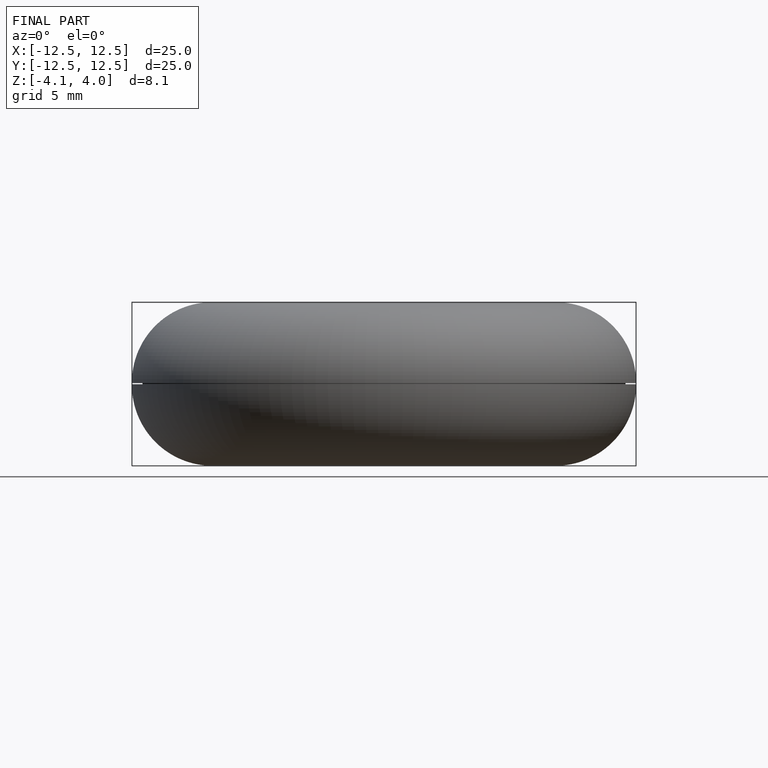
[diagram: finished part — front view with bounding-box wireframe]
